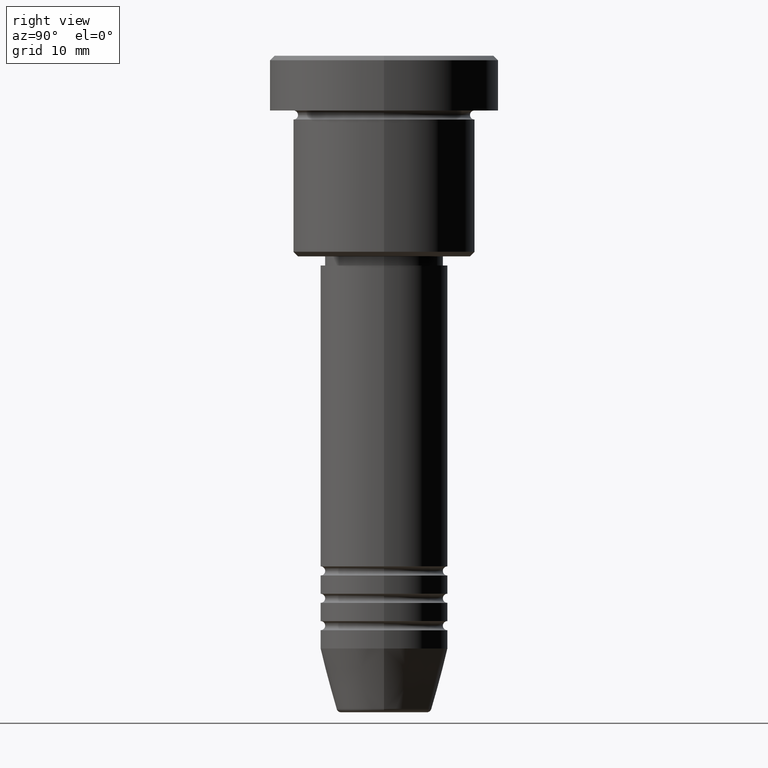
[diagram: clean part render]
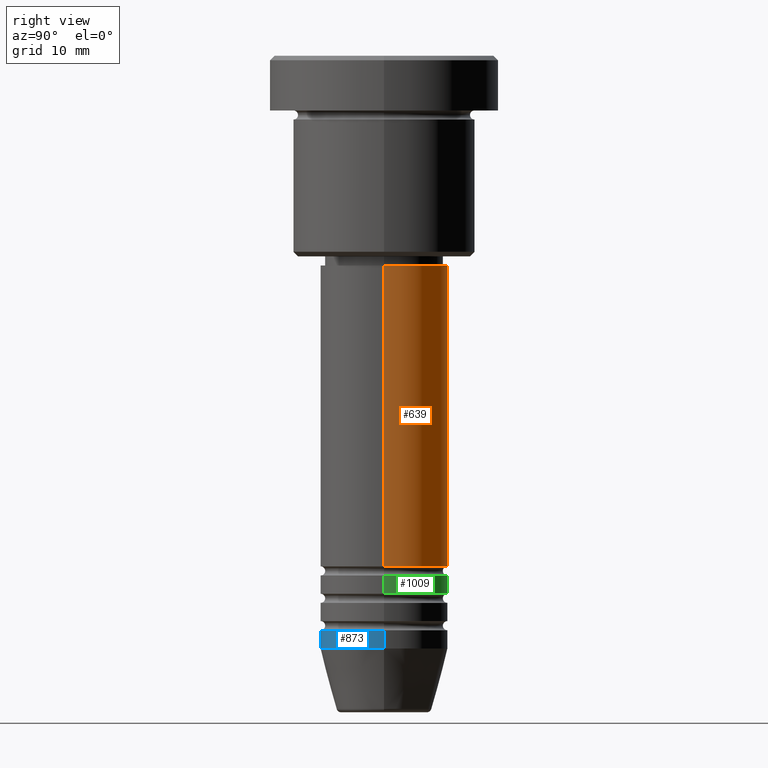
[diagram: same view with three faces highlighted in distinct colors, each labeled with its STEP entity id]
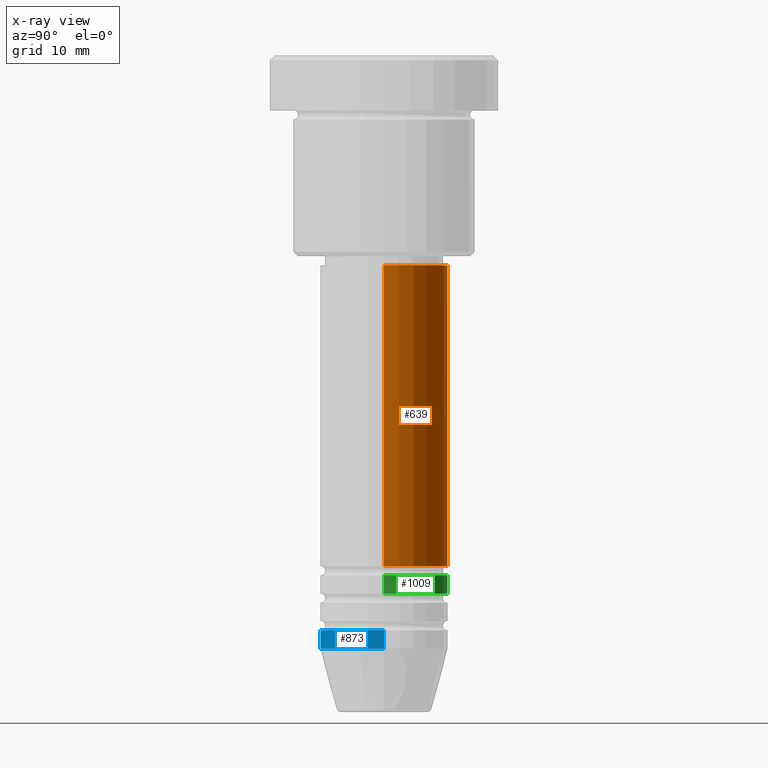
[diagram: x-ray of the same camera — body ghosted, the three highlighted faces saturated]
A machine part, right view with three faces highlighted in distinct colors.
The next image is the same camera in x-ray (body ghosted, the three faces saturated) — at least one of them is partly hidden behind the body in this view.
Their STEP definitions:

[orange] entity #639 — the highlighted cylindrical surface (partial cylindrical patch) has radius 7 mm, axis along (-0, -0, 1).
#1 = CARTESIAN_POINT ( 'NONE',  ( 7.000000000000000000, 0.000000000000000000, 0.000000000000000000 ) ) ;
#10 = DIRECTION ( 'NONE',  ( -0.000000000000000000, -0.000000000000000000, 1.000000000000000000 ) ) ;
#36 = EDGE_CURVE ( 'NONE', #439, #634, #41, .T. ) ;
#41 = CIRCLE ( 'NONE', #930, 7.000000000000000000 ) ;
#47 = CIRCLE ( 'NONE', #95, 7.000000000000000000 ) ;
#95 = AXIS2_PLACEMENT_3D ( 'NONE', #362, #1077, #613 ) ;
#119 = VERTEX_POINT ( 'NONE', #1118 ) ;
#141 = CARTESIAN_POINT ( 'NONE',  ( -7.000000000000000000, 8.572527594031473190E-16, -55.99999999999997868 ) ) ;
#145 = CARTESIAN_POINT ( 'NONE',  ( 0.000000000000000000, 0.000000000000000000, 0.000000000000000000 ) ) ;
#269 = LINE ( 'NONE', #1, #1063 ) ;
#282 = DIRECTION ( 'NONE',  ( -0.000000000000000000, -0.000000000000000000, 1.000000000000000000 ) ) ;
#285 = ORIENTED_EDGE ( 'NONE', *, *, #36, .T. ) ;
#318 = CARTESIAN_POINT ( 'NONE',  ( -7.000000000000000000, 8.572527594031473190E-16, 0.000000000000000000 ) ) ;
#333 = FACE_OUTER_BOUND ( 'NONE', #806, .T. ) ;
#362 = CARTESIAN_POINT ( 'NONE',  ( 0.000000000000000000, 0.000000000000000000, -23.00000000000000000 ) ) ;
#439 = VERTEX_POINT ( 'NONE', #1168 ) ;
#494 = ORIENTED_EDGE ( 'NONE', *, *, #695, .T. ) ;
#509 = CYLINDRICAL_SURFACE ( 'NONE', #1158, 7.000000000000000000 ) ;
#613 = DIRECTION ( 'NONE',  ( 1.000000000000000000, 0.000000000000000000, 0.000000000000000000 ) ) ;
#634 = VERTEX_POINT ( 'NONE', #141 ) ;
#639 = ADVANCED_FACE ( 'NONE', ( #333 ), #509, .T. ) ;
#695 = EDGE_CURVE ( 'NONE', #634, #119, #696, .T. ) ;
#696 = LINE ( 'NONE', #318, #765 ) ;
#759 = VERTEX_POINT ( 'NONE', #1051 ) ;
#765 = VECTOR ( 'NONE', #776, 1000.000000000000000 ) ;
#773 = DIRECTION ( 'NONE',  ( 1.000000000000000000, 0.000000000000000000, 0.000000000000000000 ) ) ;
#776 = DIRECTION ( 'NONE',  ( -0.000000000000000000, -0.000000000000000000, 1.000000000000000000 ) ) ;
#806 = EDGE_LOOP ( 'NONE', ( #285, #494, #1026, #1090 ) ) ;
#843 = DIRECTION ( 'NONE',  ( 1.000000000000000000, 0.000000000000000000, 0.000000000000000000 ) ) ;
#930 = AXIS2_PLACEMENT_3D ( 'NONE', #1114, #10, #843 ) ;
#977 = EDGE_CURVE ( 'NONE', #439, #759, #269, .T. ) ;
#1026 = ORIENTED_EDGE ( 'NONE', *, *, #1119, .F. ) ;
#1037 = DIRECTION ( 'NONE',  ( -0.000000000000000000, -0.000000000000000000, 1.000000000000000000 ) ) ;
#1051 = CARTESIAN_POINT ( 'NONE',  ( 7.000000000000000000, 0.000000000000000000, -23.00000000000000000 ) ) ;
#1063 = VECTOR ( 'NONE', #282, 1000.000000000000000 ) ;
#1077 = DIRECTION ( 'NONE',  ( -0.000000000000000000, -0.000000000000000000, 1.000000000000000000 ) ) ;
#1090 = ORIENTED_EDGE ( 'NONE', *, *, #977, .F. ) ;
#1114 = CARTESIAN_POINT ( 'NONE',  ( 0.000000000000000000, 0.000000000000000000, -55.99999999999997868 ) ) ;
#1118 = CARTESIAN_POINT ( 'NONE',  ( -7.000000000000000000, 8.572527594031473190E-16, -23.00000000000000000 ) ) ;
#1119 = EDGE_CURVE ( 'NONE', #759, #119, #47, .T. ) ;
#1158 = AXIS2_PLACEMENT_3D ( 'NONE', #145, #1037, #773 ) ;
#1168 = CARTESIAN_POINT ( 'NONE',  ( 7.000000000000000000, 0.000000000000000000, -55.99999999999997868 ) ) ;

[blue] entity #873 — the highlighted cylindrical surface (partial cylindrical patch) has radius 7 mm, axis along (-0, -0, 1).
#15 = CARTESIAN_POINT ( 'NONE',  ( -7.000000000000000000, 8.572527594031473190E-16, 0.000000000000000000 ) ) ;
#20 = CARTESIAN_POINT ( 'NONE',  ( 7.000000000000000000, 0.000000000000000000, -63.00000000000000000 ) ) ;
#54 = CARTESIAN_POINT ( 'NONE',  ( 7.000000000000000000, 0.000000000000000000, 0.000000000000000000 ) ) ;
#148 = VECTOR ( 'NONE', #1013, 1000.000000000000000 ) ;
#164 = CYLINDRICAL_SURFACE ( 'NONE', #344, 7.000000000000000000 ) ;
#215 = AXIS2_PLACEMENT_3D ( 'NONE', #895, #621, #1173 ) ;
#234 = AXIS2_PLACEMENT_3D ( 'NONE', #1175, #379, #1171 ) ;
#257 = EDGE_CURVE ( 'NONE', #963, #544, #507, .T. ) ;
#311 = LINE ( 'NONE', #15, #148 ) ;
#329 = ORIENTED_EDGE ( 'NONE', *, *, #1132, .F. ) ;
#344 = AXIS2_PLACEMENT_3D ( 'NONE', #732, #627, #529 ) ;
#356 = CARTESIAN_POINT ( 'NONE',  ( 7.000000000000000000, 0.000000000000000000, -65.00000000000000000 ) ) ;
#375 = VERTEX_POINT ( 'NONE', #734 ) ;
#379 = DIRECTION ( 'NONE',  ( -0.000000000000000000, -0.000000000000000000, 1.000000000000000000 ) ) ;
#446 = ORIENTED_EDGE ( 'NONE', *, *, #257, .T. ) ;
#507 = LINE ( 'NONE', #54, #588 ) ;
#529 = DIRECTION ( 'NONE',  ( 1.000000000000000000, 0.000000000000000000, 0.000000000000000000 ) ) ;
#544 = VERTEX_POINT ( 'NONE', #20 ) ;
#578 = EDGE_CURVE ( 'NONE', #375, #830, #311, .T. ) ;
#588 = VECTOR ( 'NONE', #597, 1000.000000000000000 ) ;
#597 = DIRECTION ( 'NONE',  ( -0.000000000000000000, -0.000000000000000000, 1.000000000000000000 ) ) ;
#621 = DIRECTION ( 'NONE',  ( -0.000000000000000000, -0.000000000000000000, 1.000000000000000000 ) ) ;
#627 = DIRECTION ( 'NONE',  ( -0.000000000000000000, -0.000000000000000000, 1.000000000000000000 ) ) ;
#701 = CARTESIAN_POINT ( 'NONE',  ( -7.000000000000000000, 8.572527594031473190E-16, -63.00000000000000000 ) ) ;
#727 = CIRCLE ( 'NONE', #215, 7.000000000000000000 ) ;
#732 = CARTESIAN_POINT ( 'NONE',  ( 0.000000000000000000, 0.000000000000000000, 0.000000000000000000 ) ) ;
#734 = CARTESIAN_POINT ( 'NONE',  ( -7.000000000000000000, 8.572527594031473190E-16, -65.00000000000000000 ) ) ;
#830 = VERTEX_POINT ( 'NONE', #701 ) ;
#873 = ADVANCED_FACE ( 'NONE', ( #905 ), #164, .T. ) ;
#892 = CIRCLE ( 'NONE', #234, 7.000000000000000000 ) ;
#895 = CARTESIAN_POINT ( 'NONE',  ( 0.000000000000000000, 0.000000000000000000, -63.00000000000000000 ) ) ;
#905 = FACE_OUTER_BOUND ( 'NONE', #1109, .T. ) ;
#941 = EDGE_CURVE ( 'NONE', #375, #963, #892, .T. ) ;
#963 = VERTEX_POINT ( 'NONE', #356 ) ;
#1002 = ORIENTED_EDGE ( 'NONE', *, *, #578, .F. ) ;
#1013 = DIRECTION ( 'NONE',  ( -0.000000000000000000, -0.000000000000000000, 1.000000000000000000 ) ) ;
#1109 = EDGE_LOOP ( 'NONE', ( #1002, #1115, #446, #329 ) ) ;
#1115 = ORIENTED_EDGE ( 'NONE', *, *, #941, .T. ) ;
#1132 = EDGE_CURVE ( 'NONE', #830, #544, #727, .T. ) ;
#1171 = DIRECTION ( 'NONE',  ( 1.000000000000000000, 0.000000000000000000, 0.000000000000000000 ) ) ;
#1173 = DIRECTION ( 'NONE',  ( 1.000000000000000000, 0.000000000000000000, 0.000000000000000000 ) ) ;
#1175 = CARTESIAN_POINT ( 'NONE',  ( 0.000000000000000000, 0.000000000000000000, -65.00000000000000000 ) ) ;

[green] entity #1009 — the highlighted cylindrical surface (partial cylindrical patch) has radius 7 mm, axis along (-0, -0, 1).
#8 = CARTESIAN_POINT ( 'NONE',  ( 7.000000000000000000, 0.000000000000000000, -56.99999999999997868 ) ) ;
#23 = CARTESIAN_POINT ( 'NONE',  ( 7.000000000000000000, 0.000000000000000000, 0.000000000000000000 ) ) ;
#30 = EDGE_CURVE ( 'NONE', #1045, #547, #312, .T. ) ;
#48 = EDGE_CURVE ( 'NONE', #547, #848, #744, .T. ) ;
#169 = CARTESIAN_POINT ( 'NONE',  ( 0.000000000000000000, 0.000000000000000000, 0.000000000000000000 ) ) ;
#182 = CYLINDRICAL_SURFACE ( 'NONE', #823, 7.000000000000000000 ) ;
#192 = FACE_OUTER_BOUND ( 'NONE', #673, .T. ) ;
#267 = VECTOR ( 'NONE', #1126, 1000.000000000000000 ) ;
#302 = DIRECTION ( 'NONE',  ( -0.000000000000000000, -0.000000000000000000, 1.000000000000000000 ) ) ;
#312 = LINE ( 'NONE', #23, #267 ) ;
#373 = CARTESIAN_POINT ( 'NONE',  ( -7.000000000000000000, 8.572527594031473190E-16, 0.000000000000000000 ) ) ;
#398 = CARTESIAN_POINT ( 'NONE',  ( 0.000000000000000000, 0.000000000000000000, -56.99999999999997868 ) ) ;
#539 = CARTESIAN_POINT ( 'NONE',  ( 7.000000000000000000, 0.000000000000000000, -58.99999999999998579 ) ) ;
#543 = DIRECTION ( 'NONE',  ( -0.000000000000000000, -0.000000000000000000, 1.000000000000000000 ) ) ;
#547 = VERTEX_POINT ( 'NONE', #8 ) ;
#595 = CARTESIAN_POINT ( 'NONE',  ( -7.000000000000000000, 8.572527594031473190E-16, -58.99999999999998579 ) ) ;
#615 = CARTESIAN_POINT ( 'NONE',  ( -7.000000000000000000, 8.572527594031473190E-16, -56.99999999999997868 ) ) ;
#617 = ORIENTED_EDGE ( 'NONE', *, *, #30, .F. ) ;
#638 = DIRECTION ( 'NONE',  ( 1.000000000000000000, 0.000000000000000000, 0.000000000000000000 ) ) ;
#648 = ORIENTED_EDGE ( 'NONE', *, *, #48, .F. ) ;
#673 = EDGE_LOOP ( 'NONE', ( #787, #918, #648, #617 ) ) ;
#678 = VERTEX_POINT ( 'NONE', #595 ) ;
#744 = CIRCLE ( 'NONE', #871, 7.000000000000000000 ) ;
#748 = DIRECTION ( 'NONE',  ( 1.000000000000000000, 0.000000000000000000, 0.000000000000000000 ) ) ;
#787 = ORIENTED_EDGE ( 'NONE', *, *, #1157, .T. ) ;
#823 = AXIS2_PLACEMENT_3D ( 'NONE', #169, #543, #638 ) ;
#848 = VERTEX_POINT ( 'NONE', #615 ) ;
#871 = AXIS2_PLACEMENT_3D ( 'NONE', #398, #302, #748 ) ;
#886 = LINE ( 'NONE', #373, #1043 ) ;
#918 = ORIENTED_EDGE ( 'NONE', *, *, #1061, .T. ) ;
#935 = AXIS2_PLACEMENT_3D ( 'NONE', #993, #1149, #1054 ) ;
#993 = CARTESIAN_POINT ( 'NONE',  ( 0.000000000000000000, 0.000000000000000000, -58.99999999999998579 ) ) ;
#1009 = ADVANCED_FACE ( 'NONE', ( #192 ), #182, .T. ) ;
#1043 = VECTOR ( 'NONE', #1164, 1000.000000000000000 ) ;
#1045 = VERTEX_POINT ( 'NONE', #539 ) ;
#1054 = DIRECTION ( 'NONE',  ( 1.000000000000000000, 0.000000000000000000, 0.000000000000000000 ) ) ;
#1061 = EDGE_CURVE ( 'NONE', #678, #848, #886, .T. ) ;
#1108 = CIRCLE ( 'NONE', #935, 7.000000000000000000 ) ;
#1126 = DIRECTION ( 'NONE',  ( -0.000000000000000000, -0.000000000000000000, 1.000000000000000000 ) ) ;
#1149 = DIRECTION ( 'NONE',  ( -0.000000000000000000, -0.000000000000000000, 1.000000000000000000 ) ) ;
#1157 = EDGE_CURVE ( 'NONE', #1045, #678, #1108, .T. ) ;
#1164 = DIRECTION ( 'NONE',  ( -0.000000000000000000, -0.000000000000000000, 1.000000000000000000 ) ) ;